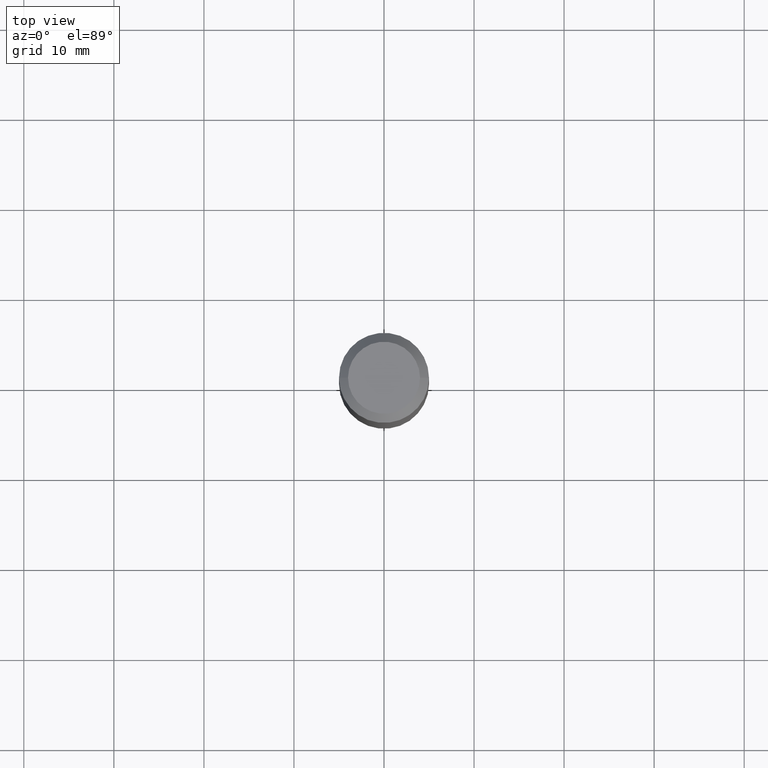
[diagram: clean part render]
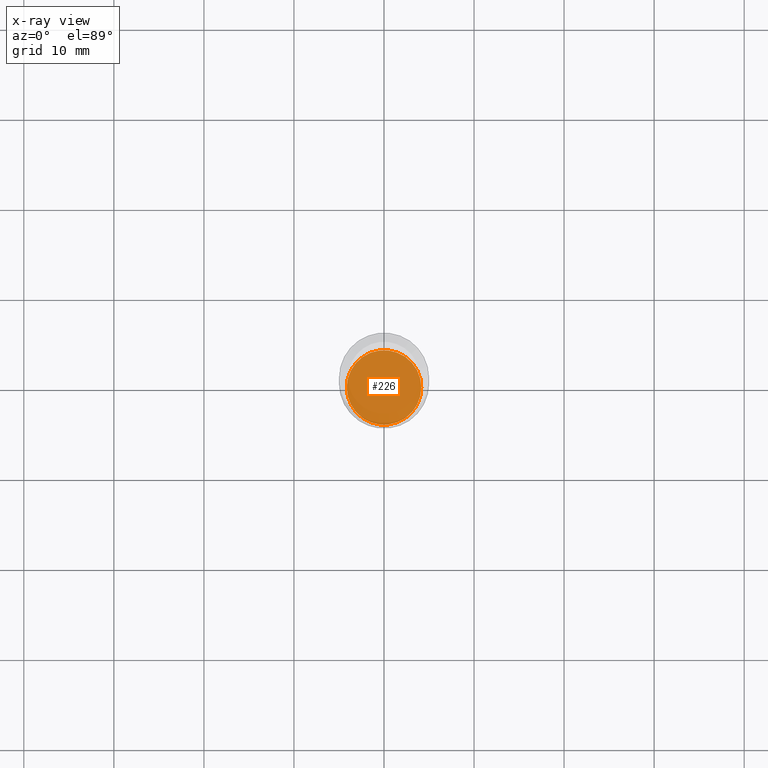
[diagram: x-ray — body ghosted, one internal face saturated and labeled with its STEP entity id]
A machine part, top view, then the same camera in x-ray: the body is ghosted and one INTERNAL B-rep face — a face not visible from any outside direction — is saturated and labeled: STEP entity #226.
In plain terms, the highlighted planar face has unit normal (-0, 0, 1).
Its self-contained STEP definition (entity closure, byte-faithful):
#5 = FACE_OUTER_BOUND ( 'NONE', #222, .T. ) ;
#32 = AXIS2_PLACEMENT_3D ( 'NONE', #490, #130, #294 ) ;
#42 = CARTESIAN_POINT ( 'NONE',  ( 0.1628999999999999893, -9.770561378618654560E-15, -2.472600000000000353 ) ) ;
#92 = CARTESIAN_POINT ( 'NONE',  ( -0.1628999999999999893, -7.472913414696247881E-15, -2.472600000000000353 ) ) ;
#93 = CARTESIAN_POINT ( 'NONE',  ( 6.046666170173369648E-29, -8.633036758423563392E-15, -2.472600000000000353 ) ) ;
#123 = DIRECTION ( 'NONE',  ( 1.000000000000000000, -6.982962677686265922E-15, 4.876176775795935793E-29 ) ) ;
#130 = DIRECTION ( 'NONE',  ( -2.445468806185136597E-29, 3.491481338843145583E-15, 1.000000000000000000 ) ) ;
#133 = DIRECTION ( 'NONE',  ( 1.000000000000000000, -6.982962677686264344E-15, 0.000000000000000000 ) ) ;
#166 = DIRECTION ( 'NONE',  ( -2.438088387897960049E-29, 3.491481338843145188E-15, 1.000000000000000000 ) ) ;
#171 = PLANE ( 'NONE',  #178 ) ;
#178 = AXIS2_PLACEMENT_3D ( 'NONE', #449, #166, #123 ) ;
#201 = CIRCLE ( 'NONE', #32, 0.1628999999999999893 ) ;
#222 = EDGE_LOOP ( 'NONE', ( #389, #362 ) ) ;
#226 = ADVANCED_FACE ( 'NONE', ( #5 ), #171, .F. ) ;
#250 = DIRECTION ( 'NONE',  ( -2.445468806185136597E-29, 3.491481338843145583E-15, 1.000000000000000000 ) ) ;
#264 = CIRCLE ( 'NONE', #448, 0.1628999999999999893 ) ;
#294 = DIRECTION ( 'NONE',  ( 1.000000000000000000, -6.982962677686264344E-15, 0.000000000000000000 ) ) ;
#362 = ORIENTED_EDGE ( 'NONE', *, *, #493, .F. ) ;
#373 = VERTEX_POINT ( 'NONE', #42 ) ;
#389 = ORIENTED_EDGE ( 'NONE', *, *, #509, .F. ) ;
#431 = VERTEX_POINT ( 'NONE', #92 ) ;
#448 = AXIS2_PLACEMENT_3D ( 'NONE', #93, #250, #133 ) ;
#449 = CARTESIAN_POINT ( 'NONE',  ( 6.046666170173369648E-29, -8.633036758423563392E-15, -2.472600000000000353 ) ) ;
#490 = CARTESIAN_POINT ( 'NONE',  ( 6.046666170173369648E-29, -8.633036758423563392E-15, -2.472600000000000353 ) ) ;
#493 = EDGE_CURVE ( 'NONE', #431, #373, #264, .T. ) ;
#509 = EDGE_CURVE ( 'NONE', #373, #431, #201, .T. ) ;